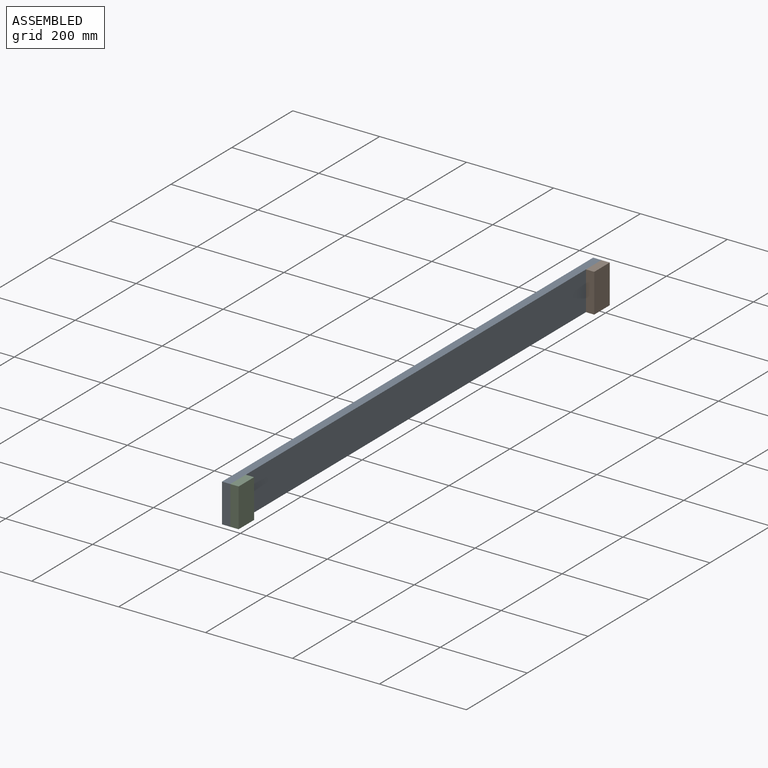
[diagram: assembled view]
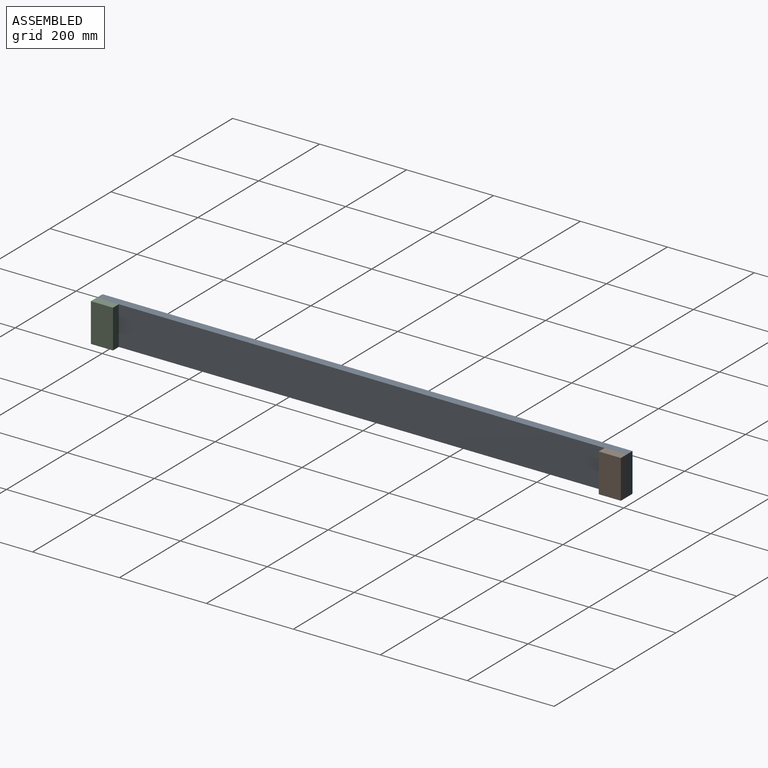
[diagram: assembled view, second angle]
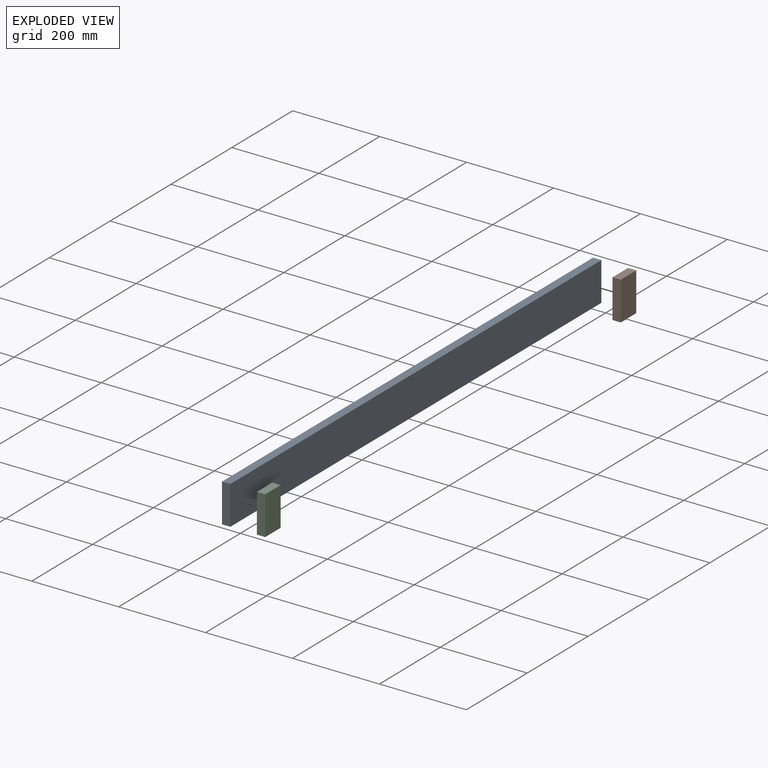
[diagram: exploded view]
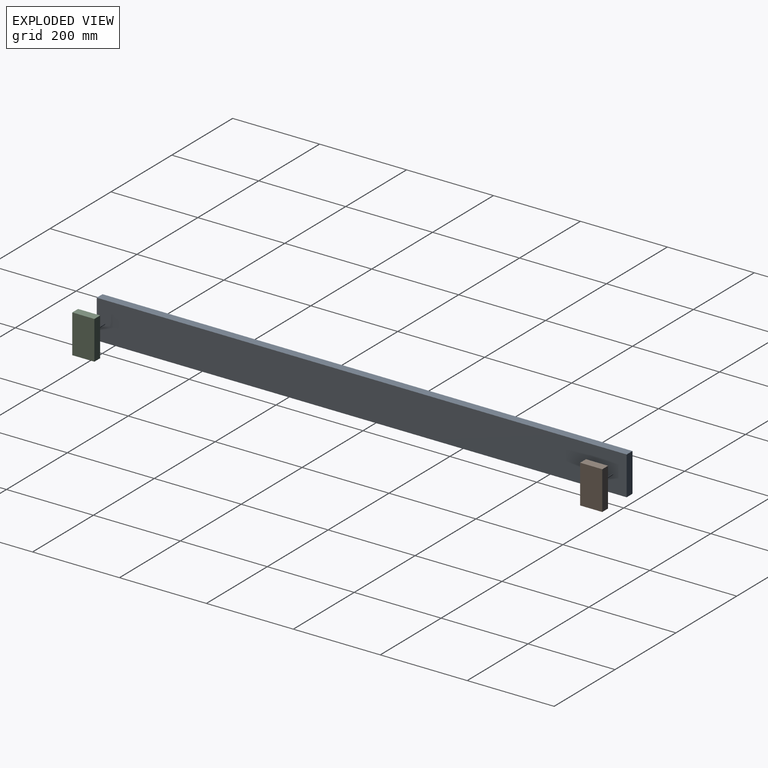
[diagram: exploded view, second angle]
ASSEMBLY  parts=3 mates=2
PART A: 6 faces, bbox 1219.2x19.1x88.9 mm
  f0: plane 1219.2x19.05mm, normal (0,0,1), area 23225.8mm2, adj f1,f3,f4,f5
  f1: plane 88.9x19.05mm, normal (-1,0,0), area 1693.5mm2, adj f0,f2,f4,f5
  f2: plane 1219.2x19.05mm, normal (0,0,-1), area 23225.8mm2, adj f1,f3,f4,f5
  f3: plane 88.9x19.05mm, normal (1,0,0), area 1693.5mm2, adj f0,f2,f4,f5
  f4: plane 1219.2x88.9mm, normal (0,-1,0), area 108386.9mm2, adj f0,f1,f2,f3
  f5: plane 1219.2x88.9mm, normal (0,1,0), area 108386.9mm2, adj f0,f1,f2,f3
PART B: 6 faces, bbox 50.8x19.1x88.9 mm
  f0: plane 50.8x19.05mm, normal (0,0,1), area 967.7mm2, adj f1,f3,f4,f5
  f1: plane 88.9x19.05mm, normal (-1,0,0), area 1693.5mm2, adj f0,f2,f4,f5
  f2: plane 50.8x19.05mm, normal (0,0,-1), area 967.7mm2, adj f1,f3,f4,f5
  f3: plane 88.9x19.05mm, normal (1,0,0), area 1693.5mm2, adj f0,f2,f4,f5
  f4: plane 88.9x50.8mm, normal (0,-1,0), area 4516.1mm2, adj f0,f1,f2,f3
  f5: plane 88.9x50.8mm, normal (0,1,0), area 4516.1mm2, adj f0,f1,f2,f3
PART C: same geometry as B
PLACE A rot(axis=(0,0,-1),90deg) t=(-609.6,-609.6,25.4)mm
PLACE B rot(axis=(0,0,-1),90deg) t=(-590.55,-25.4,25.4)mm
PLACE C rot(axis=(0,0,-1),90deg) t=(-590.55,-1193.8,25.4)mm
MATE planar B.f4 <-> A.f5  axis (-1,0,0) through (-609.6,0,25.4)mm
MATE planar C.f4 <-> A.f5  axis (-1,0,0) through (-609.6,-1219.2,25.4)mm
